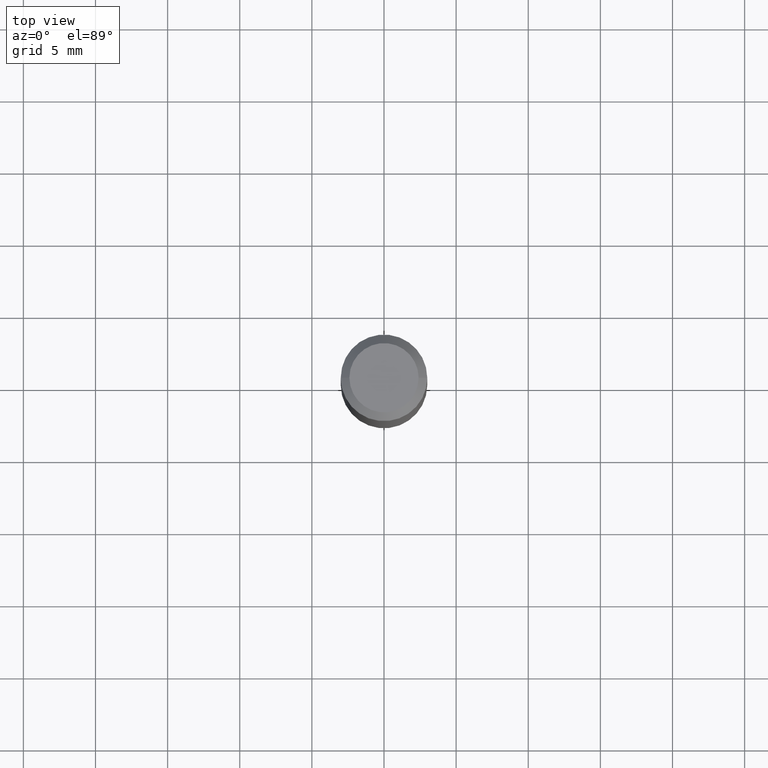
[diagram: clean part render]
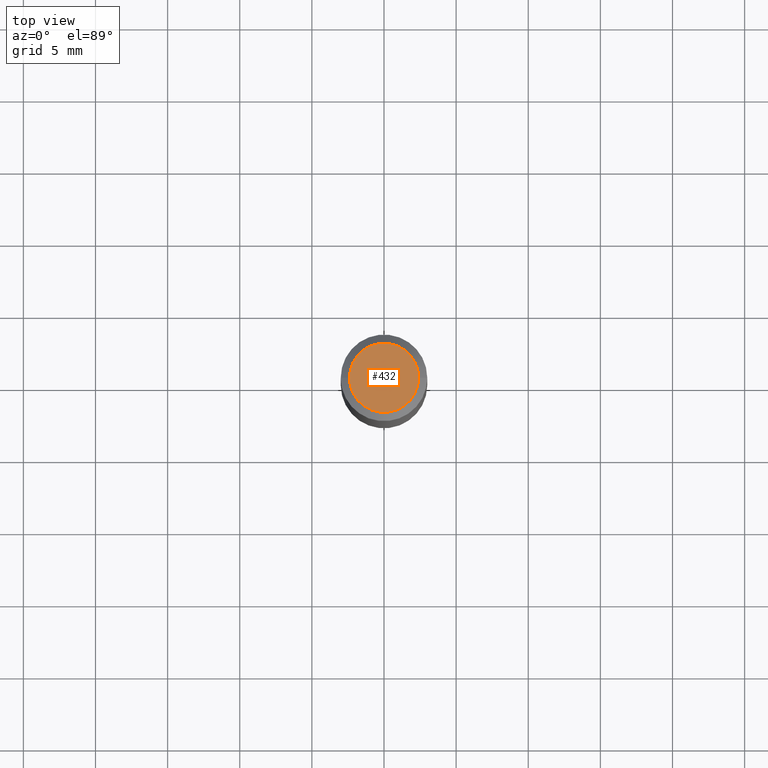
[diagram: same view with one face highlighted and labeled with its STEP entity id]
A machine part, top view. The second image highlights one B-rep face of the part: STEP entity #432.
In plain terms, the highlighted planar face has unit normal (0, -0, -1).
Its self-contained STEP definition (entity closure, byte-faithful):
#20 = AXIS2_PLACEMENT_3D ( 'NONE', #429, #151, #378 ) ;
#38 = CIRCLE ( 'NONE', #417, 0.09447999999999998066 ) ;
#49 = EDGE_LOOP ( 'NONE', ( #65, #324 ) ) ;
#65 = ORIENTED_EDGE ( 'NONE', *, *, #346, .T. ) ;
#107 = CIRCLE ( 'NONE', #20, 0.09447999999999998066 ) ;
#134 = PLANE ( 'NONE',  #150 ) ;
#150 = AXIS2_PLACEMENT_3D ( 'NONE', #287, #452, #405 ) ;
#151 = DIRECTION ( 'NONE',  ( -2.445468806185136597E-29, 3.491481338843145583E-15, 1.000000000000000000 ) ) ;
#159 = VERTEX_POINT ( 'NONE', #466 ) ;
#168 = CARTESIAN_POINT ( 'NONE',  ( 0.09447999999999998066, -7.704367267948738690E-16, -3.085620075131172158E-17 ) ) ;
#176 = EDGE_CURVE ( 'NONE', #285, #159, #107, .T. ) ;
#199 = CARTESIAN_POINT ( 'NONE',  ( 7.545787641473140628E-46, -1.077338491108201769E-31, -3.085620075131671975E-17 ) ) ;
#238 = DIRECTION ( 'NONE',  ( -2.445468806185136597E-29, 3.491481338843145583E-15, 1.000000000000000000 ) ) ;
#285 = VERTEX_POINT ( 'NONE', #168 ) ;
#287 = CARTESIAN_POINT ( 'NONE',  ( 3.772893820736570314E-46, -5.386692455541008845E-32, -1.542810037565835988E-17 ) ) ;
#320 = DIRECTION ( 'NONE',  ( 1.000000000000000000, -6.982962677686267499E-15, 4.875432709231658792E-29 ) ) ;
#324 = ORIENTED_EDGE ( 'NONE', *, *, #176, .T. ) ;
#346 = EDGE_CURVE ( 'NONE', #159, #285, #38, .T. ) ;
#378 = DIRECTION ( 'NONE',  ( 1.000000000000000000, -6.982962677686267499E-15, 4.875432709231658792E-29 ) ) ;
#405 = DIRECTION ( 'NONE',  ( -1.000000000000000000, 6.982962677686265922E-15, -4.876176775795935793E-29 ) ) ;
#417 = AXIS2_PLACEMENT_3D ( 'NONE', #199, #238, #320 ) ;
#429 = CARTESIAN_POINT ( 'NONE',  ( 7.545787641473140628E-46, -1.077338491108201769E-31, -3.085620075131671975E-17 ) ) ;
#432 = ADVANCED_FACE ( 'NONE', ( #488 ), #134, .F. ) ;
#452 = DIRECTION ( 'NONE',  ( 2.438088387897960049E-29, -3.491481338843145188E-15, -1.000000000000000000 ) ) ;
#466 = CARTESIAN_POINT ( 'NONE',  ( -0.09447999999999998066, 7.009847083995354710E-16, -3.085620075132147757E-17 ) ) ;
#488 = FACE_OUTER_BOUND ( 'NONE', #49, .T. ) ;